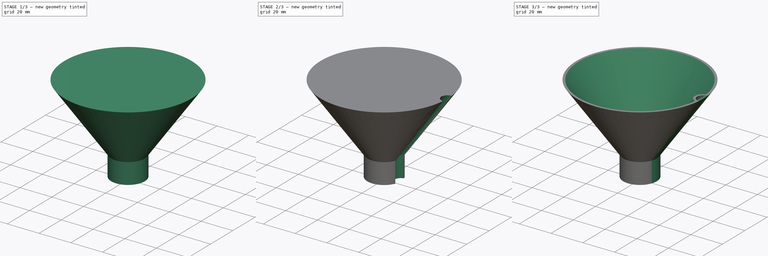
[diagram: build sequence overview — one tinted view per stage of 3, left to right]
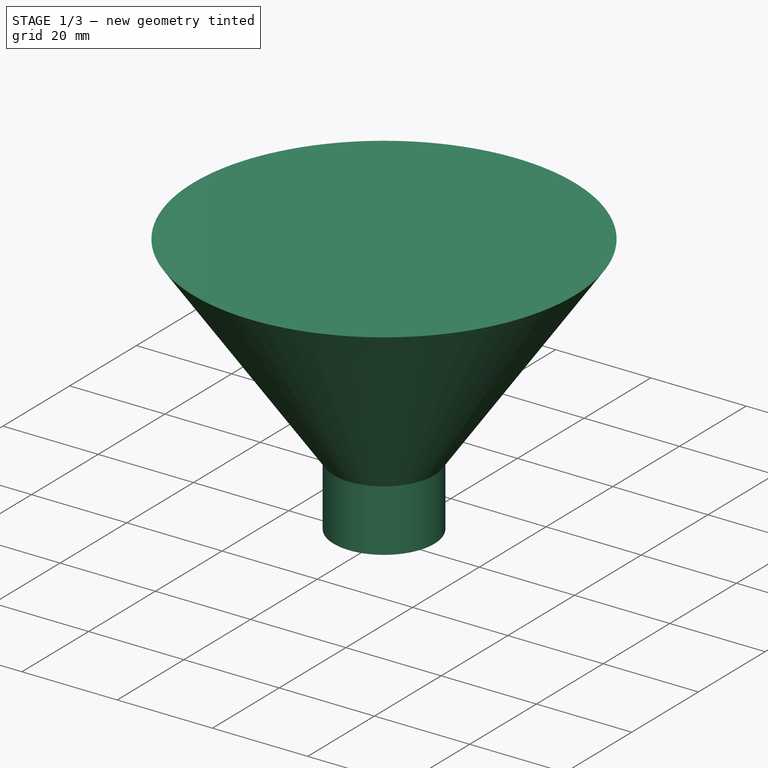
[diagram: stage 1 of 3 — iso view after this stage's code; geometry added in this stage tinted green]
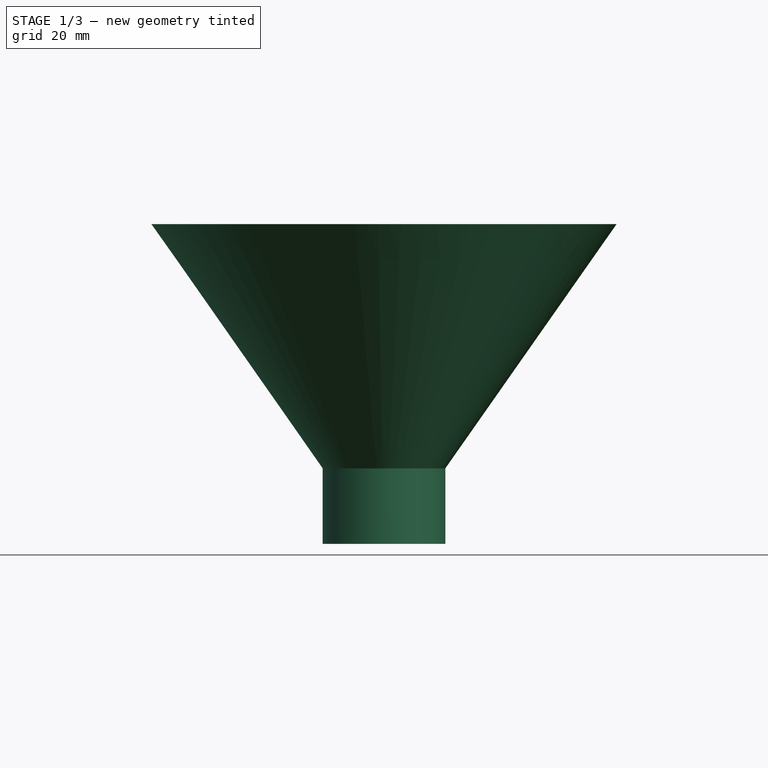
[diagram: stage 1 of 3 — front view after this stage's code; geometry added in this stage tinted green]
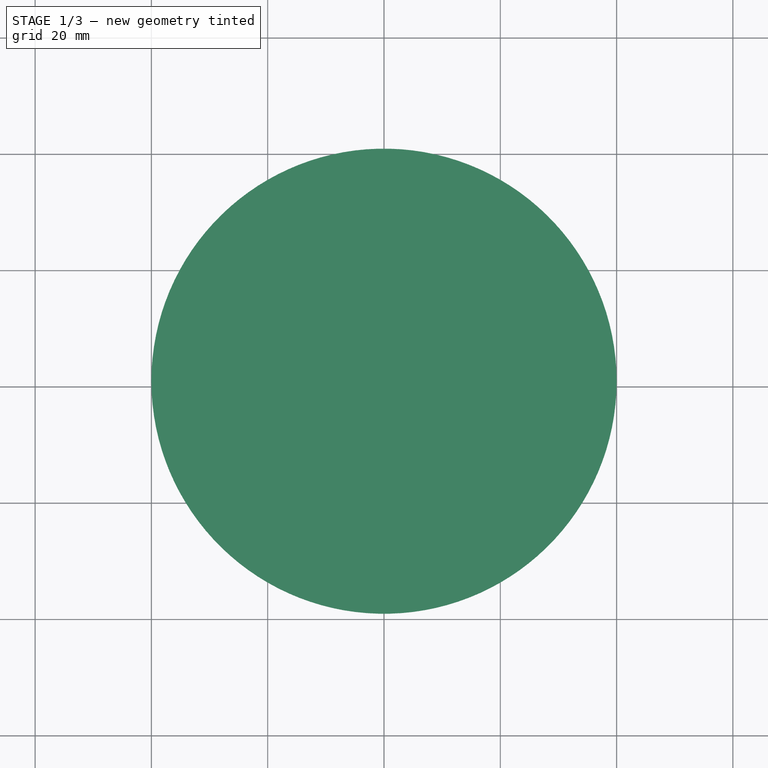
[diagram: stage 1 of 3 — top view after this stage's code; geometry added in this stage tinted green]
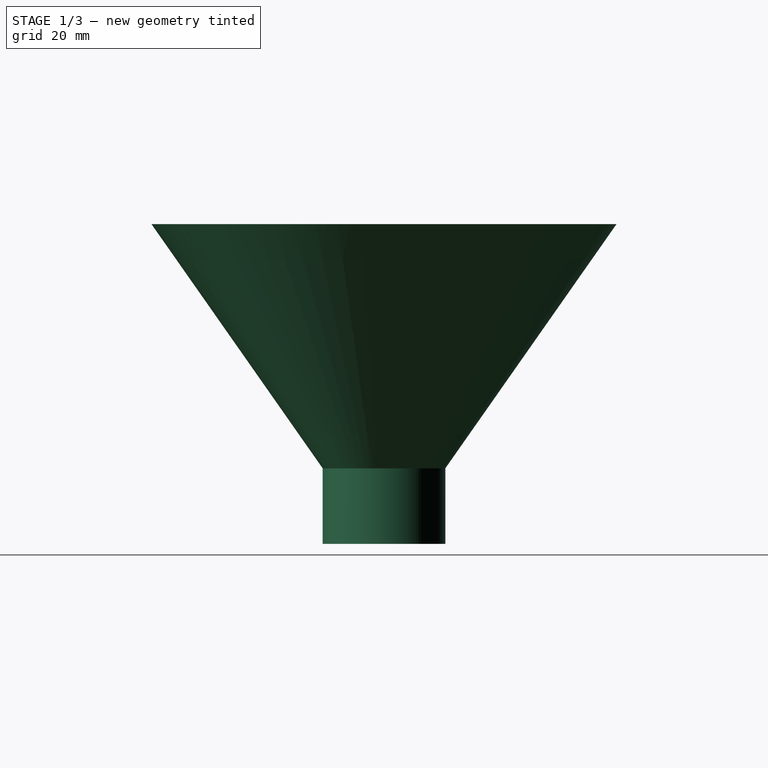
[diagram: stage 1 of 3 — right view after this stage's code; geometry added in this stage tinted green]
FCSTD DOCUMENT  (FreeCAD 1.2R20260210 (Git shallow))
Label: PD_Funnels
License: Creative Commons Attribution 4.0
LicenseURL: https://creativecommons.org/licenses/by/4.0/
objects: Sketcher::SketchObject×2, PartDesign::Thickness×2, PartDesign::Body×2, App::Point×2, PartDesign::Revolution×1, PartDesign::FeatureBase×1, PartDesign::SubtractivePipe×1
note: 20 computed .brp shape members not serialized (recipe doc carries the construction recipe); baked Part::Feature solids carry a one-line shape summary decoded from their .brp

FEATURE [Sketcher::SketchObject] Sketch
  ArcFitTolerance = 0
  AttachmentSupport = -> [XZ_Plane]
  ExternalTypes = [0]
  FullyConstrained = true
  MakeInternals = false
  MapMode = 5
  Placement = pos=(0,0,0) rot=(1,0,0;1.5708rad)
  sketch-geometry (5):
    g0: LineSegment StartX=10.55 StartY=0 StartZ=0 EndX=10.55 EndY=13 EndZ=0
    g1: LineSegment StartX=10.55 StartY=13 StartZ=0 EndX=40 EndY=55 EndZ=0
    g2: LineSegment StartX=40 StartY=55 StartZ=0 EndX=0 EndY=55 EndZ=0
    g3: LineSegment StartX=0 StartY=55 StartZ=0 EndX=0 EndY=0 EndZ=0
    g4: LineSegment StartX=0 StartY=0 StartZ=0 EndX=10.55 EndY=0 EndZ=0
  constraints (14):
    c: PointOnObject(g0,g-1)
    c: Vertical(g0)
    c: Coincident(g0,g1)
    c: Coincident(g1,g2)
    c: Horizontal(g2)
    c: Coincident(g2,g3)
    c: Coincident(g3,g-1)
    c: Vertical(g3)
    c: Coincident(g3,g4)
    c: Coincident(g4,g0)
    c: DistanceX(g2,g2) = 40
    c: DistanceX(g4,g4) = 10.55
    c: DistanceY(g0,g0) = 13
    c: Distance(g0,g2) = 42
FEATURE [PartDesign::Revolution] Revolution
  Angle = 360
  Angle2 = 60
  Axis = (0,2e-16,1)
  Base = (0,0,0)
  FuseOrder = 0
  Placement = pos=(0,0,0) rot=(1,0,0;1.5708rad)
  Profile = -> Sketch
  ReferenceAxis = -> Sketch [V_Axis]
  Refine = true
  Reversed = true
  Suppressed = false
  Type = 0
FEATURE [PartDesign::Body] Body  label="Trichter"
  AllowCompound = false
  Group = -> [Sketch,Revolution,Thickness]
  Origin = -> Origin
  Tip = -> Thickness
FEATURE [PartDesign::FeatureBase] Clone
  BaseFeature = -> Revolution
  Placement = pos=(0,0,0) rot=(1,0,0;1.5708rad)
  Suppressed = false
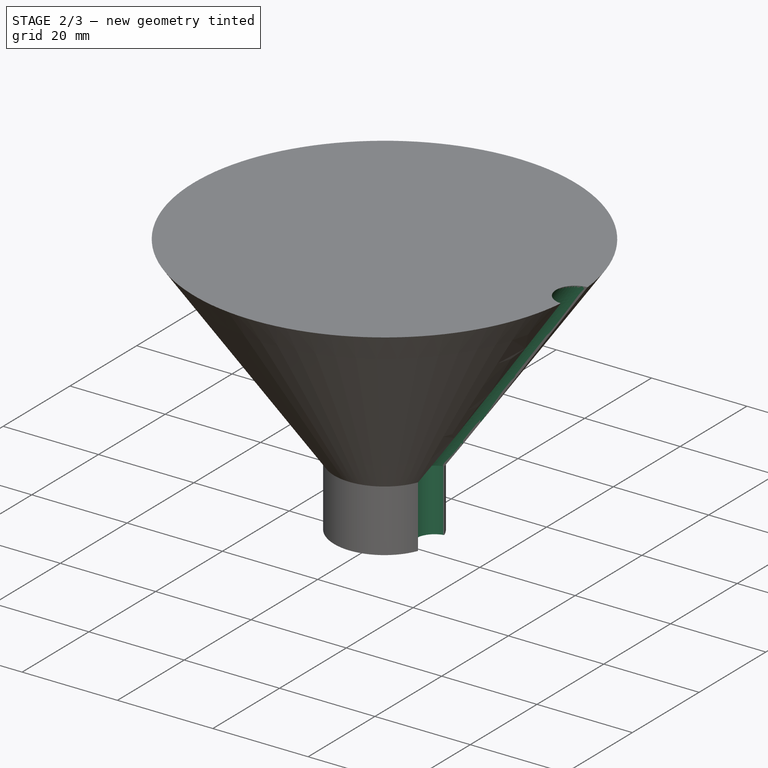
[diagram: stage 2 of 3 — iso view after this stage's code; geometry added in this stage tinted green]
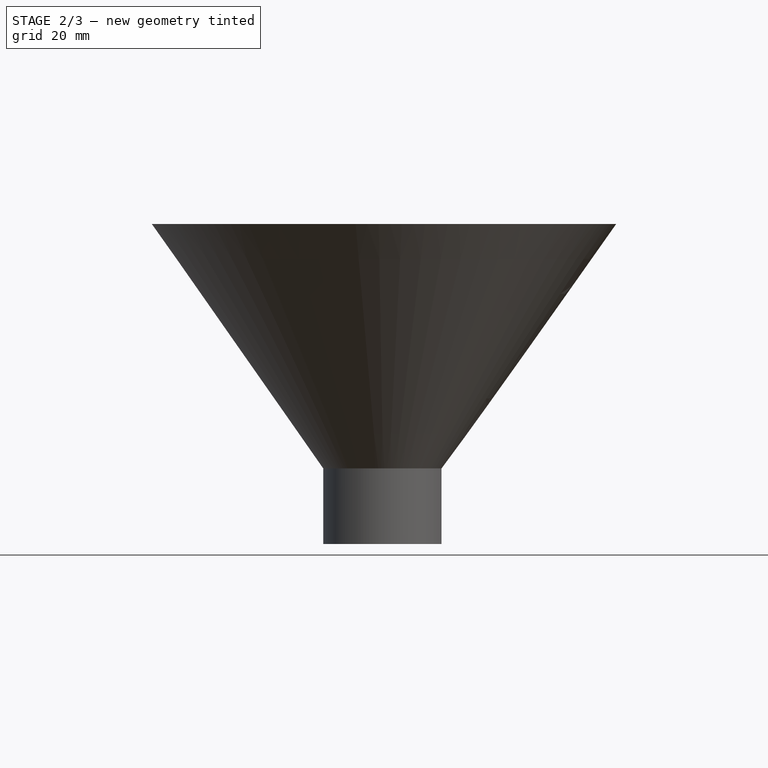
[diagram: stage 2 of 3 — front view after this stage's code; geometry added in this stage tinted green]
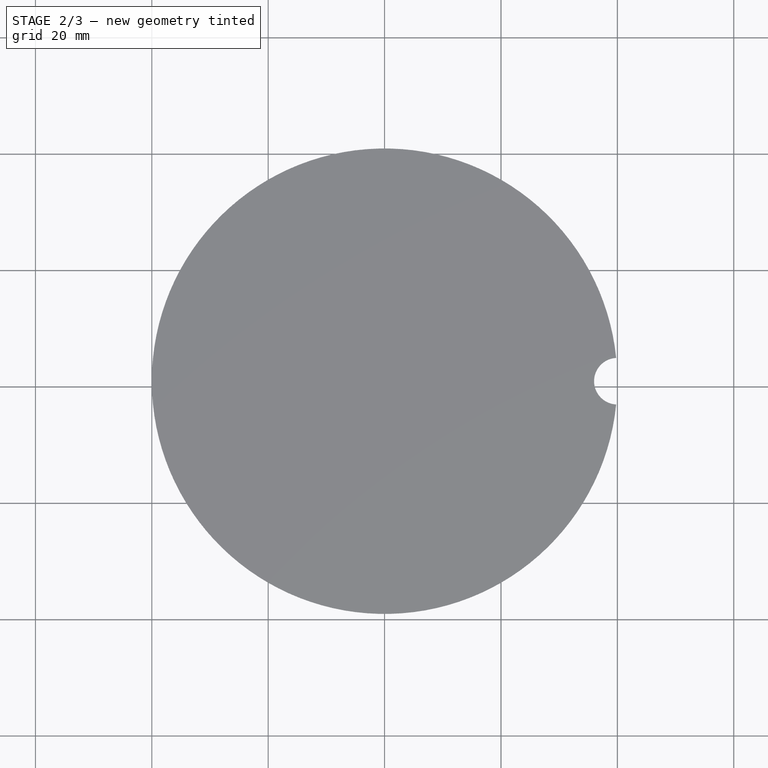
[diagram: stage 2 of 3 — top view after this stage's code; geometry added in this stage tinted green]
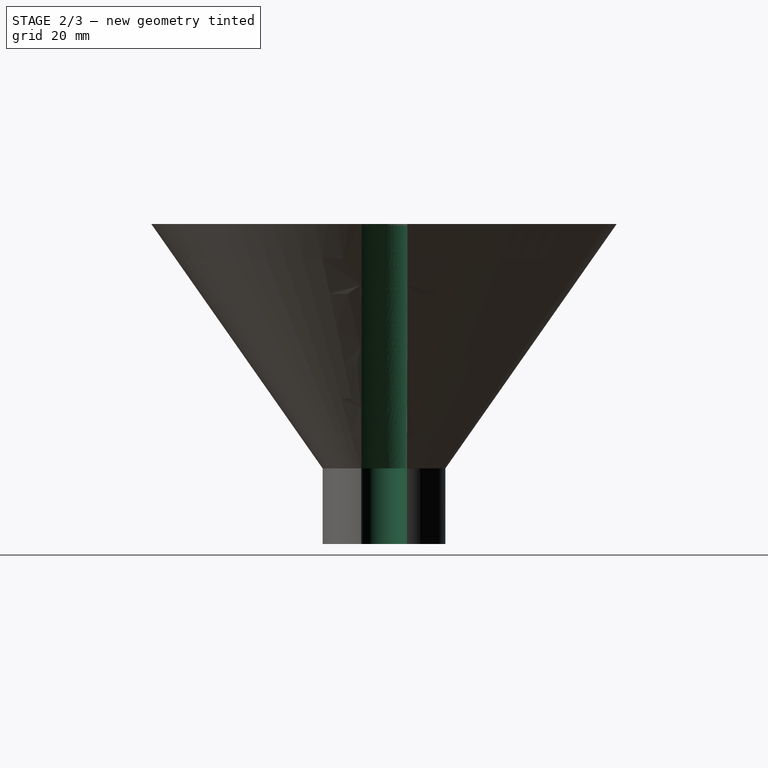
[diagram: stage 2 of 3 — right view after this stage's code; geometry added in this stage tinted green]
FEATURE [Sketcher::SketchObject] Sketch001
  ArcFitTolerance = 0
  AttachmentSupport = -> [XY_Plane001]
  ExternalGeometry = -> [Clone]
  ExternalTypes = [0]
  FullyConstrained = true
  MakeInternals = false
  MapMode = 5
  sketch-geometry (1):
    g0: Circle CenterX=10.55 CenterY=0 CenterZ=0 NormalX=0 NormalY=0 NormalZ=1 AngleXU=0 Radius=4
  constraints (2):
    c: Radius(g0) = 4
    c: Coincident(g-3,g0)
FEATURE [PartDesign::SubtractivePipe] SubtractivePipe
  AuxiliaryCurvilinear = true
  AuxiliarySpineTangent = false
  BaseFeature = -> Clone
  Binormal = (0,0,0)
  Mode = 0
  Placement = pos=(0,0,0) rot=(1,0,0;1.5708rad)
  Profile = -> Sketch001
  Refine = true
  Spine = -> Clone [Edge3,Edge5]
  SpineTangent = false
  Suppressed = false
  Transformation = 0
  Transition = 0
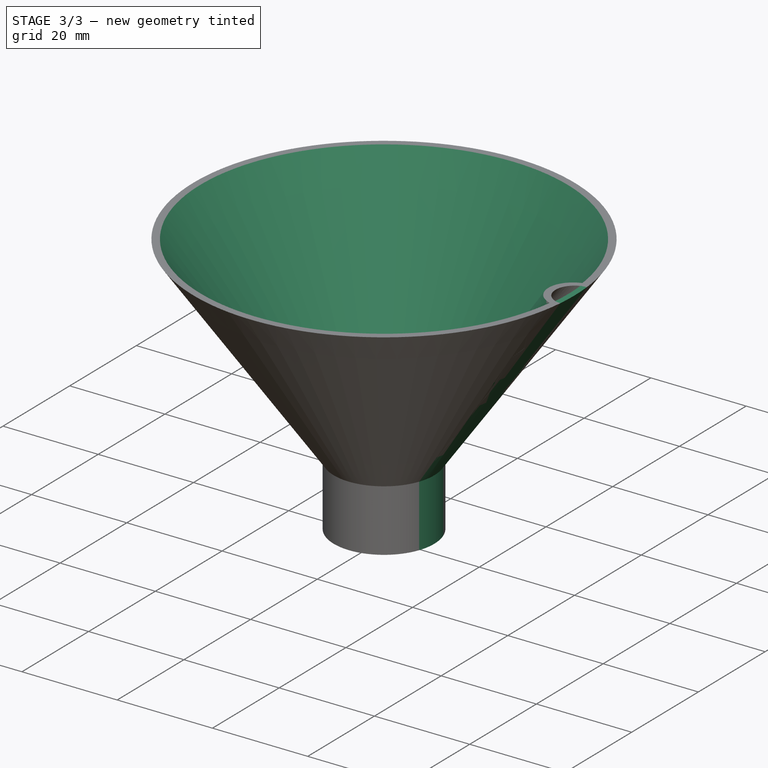
[diagram: stage 3 of 3 — iso view after this stage's code; geometry added in this stage tinted green]
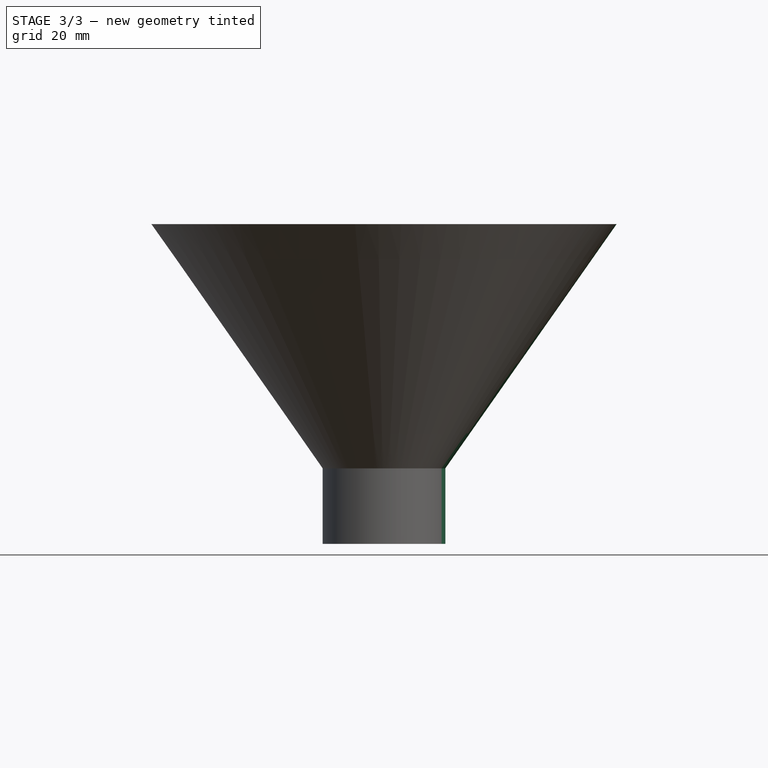
[diagram: stage 3 of 3 — front view after this stage's code; geometry added in this stage tinted green]
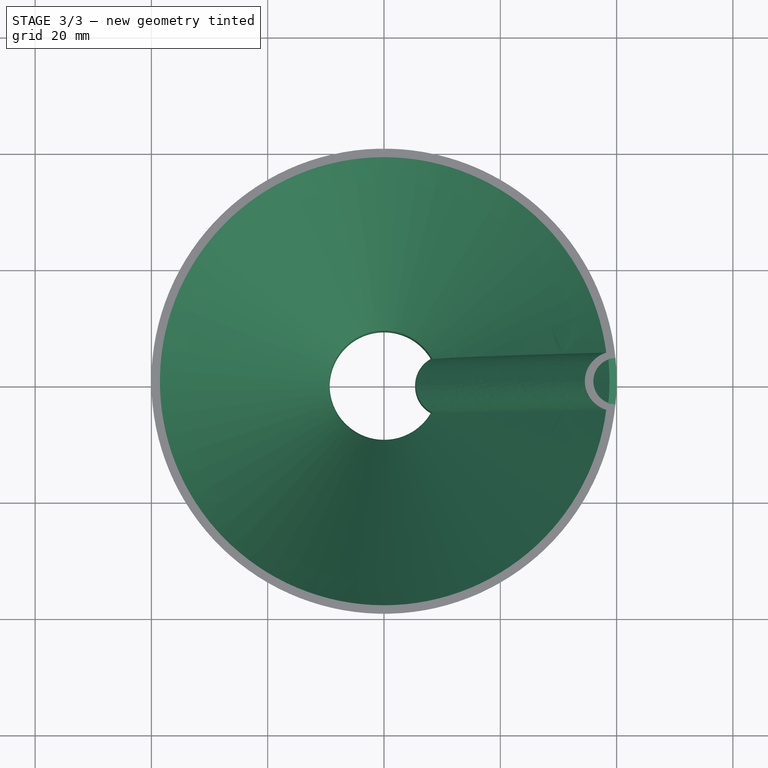
[diagram: stage 3 of 3 — top view after this stage's code; geometry added in this stage tinted green]
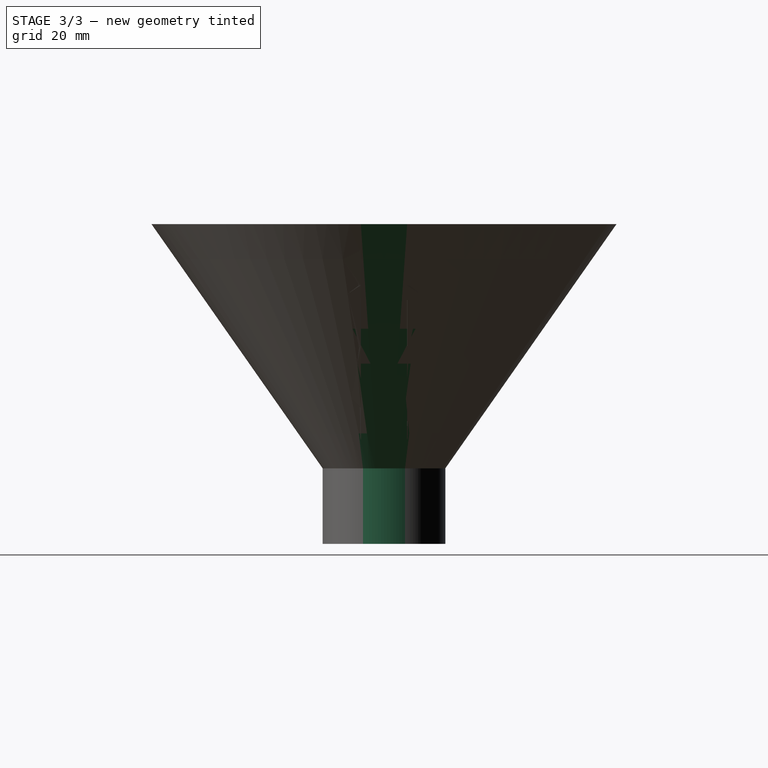
[diagram: stage 3 of 3 — right view after this stage's code; geometry added in this stage tinted green]
FEATURE [PartDesign::Thickness] Thickness
  Base = -> Revolution [Face3,Face4]
  BaseFeature = -> Revolution
  Intersection = false
  Join = 0
  Mode = 1
  Refine = true
  Reversed = true
  SupportTransform = false
  Suppressed = false
  Value = 1
FEATURE [PartDesign::Thickness] Thickness001
  Base = -> SubtractivePipe [Face6,Face4]
  BaseFeature = -> SubtractivePipe
  Intersection = true
  Join = 0
  Mode = 0
  Refine = true
  Reversed = true
  SupportTransform = false
  Suppressed = false
  Value = 1.2
FEATURE [PartDesign::Body] Body001  label="Trichter_Luftschlauch"
  AllowCompound = false
  Group = -> [Clone,Sketch001,SubtractivePipe,Thickness001]
  Origin = -> Origin001
  Tip = -> Thickness001
FEATURE [App::Point] Origin002  label="Ursprung"
  Role = Origin
FEATURE [App::Point] Origin003  label="Ursprung"
  Role = Origin
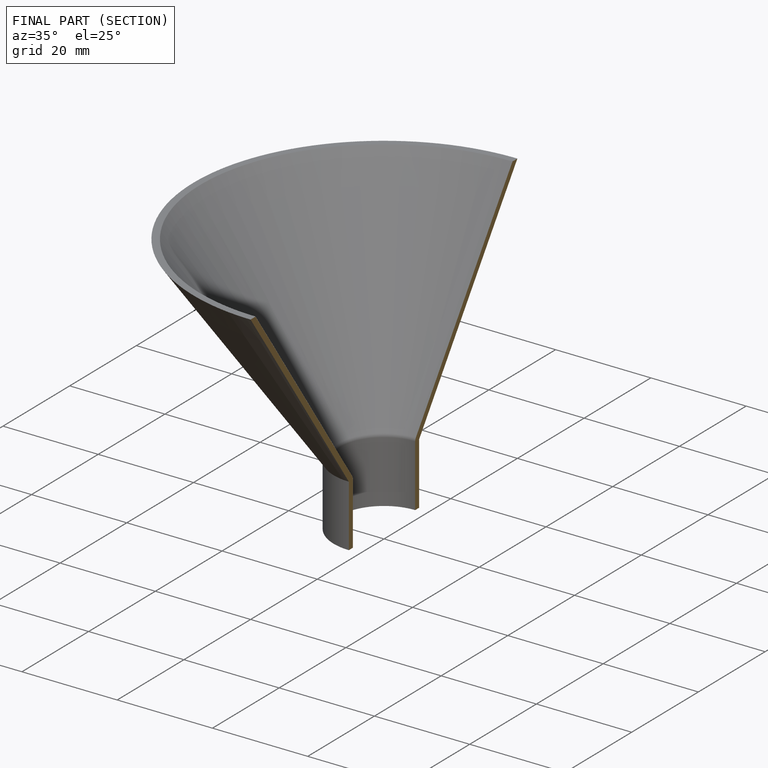
[diagram: finished part — half-section view (interior)]
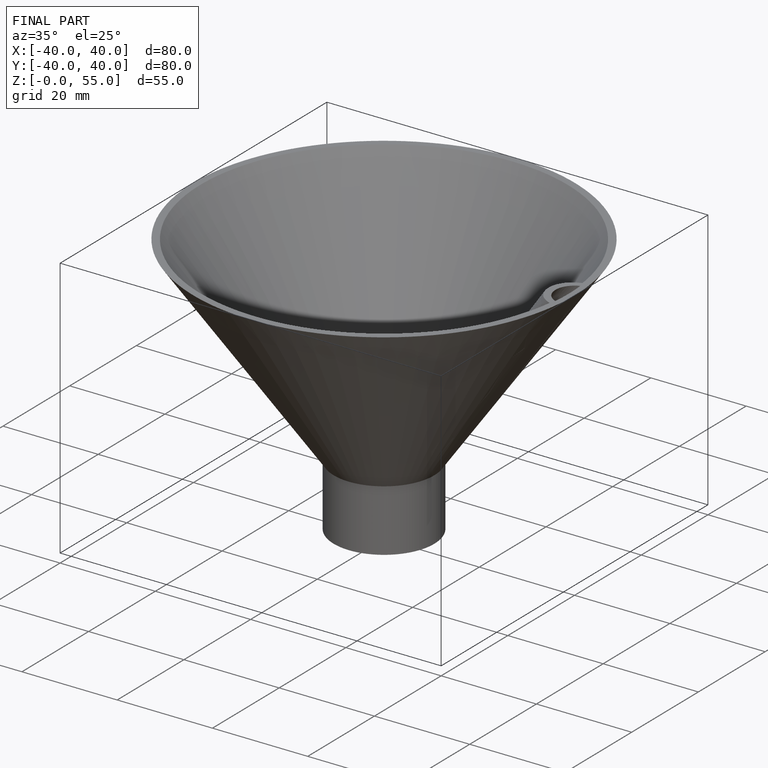
[diagram: finished part — iso view with bounding-box wireframe]
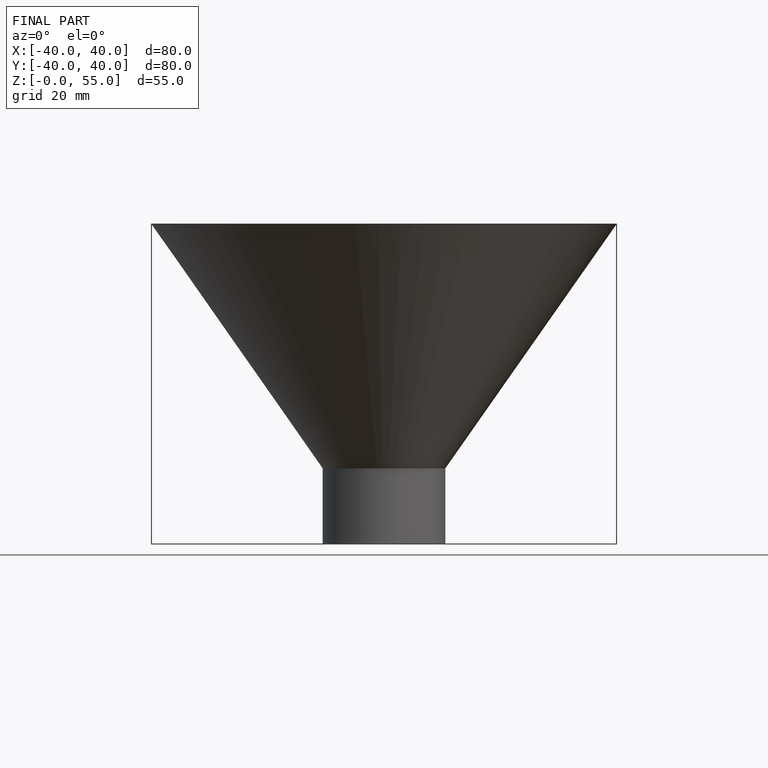
[diagram: finished part — front view with bounding-box wireframe]
